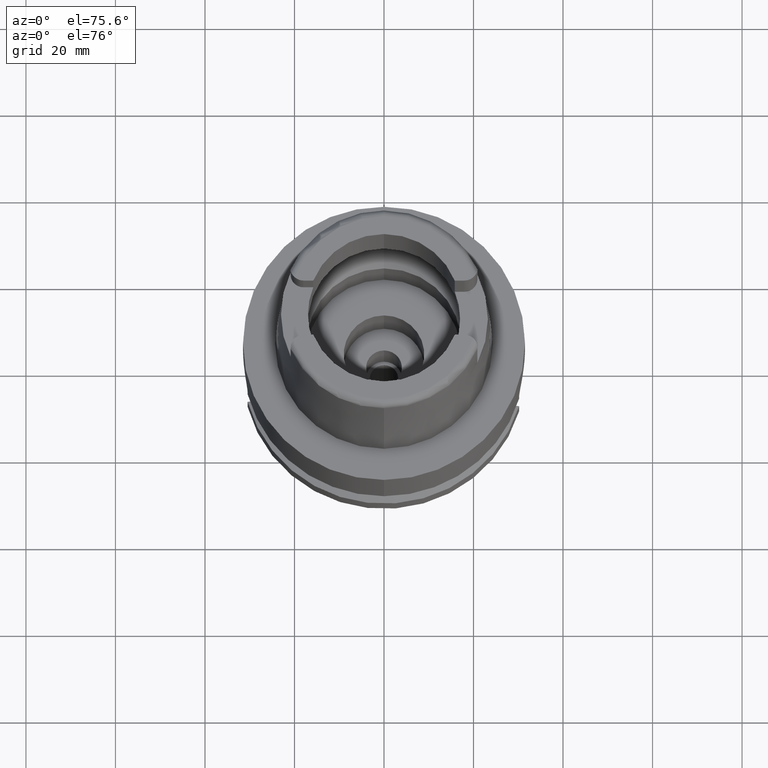
[diagram: clean part render]
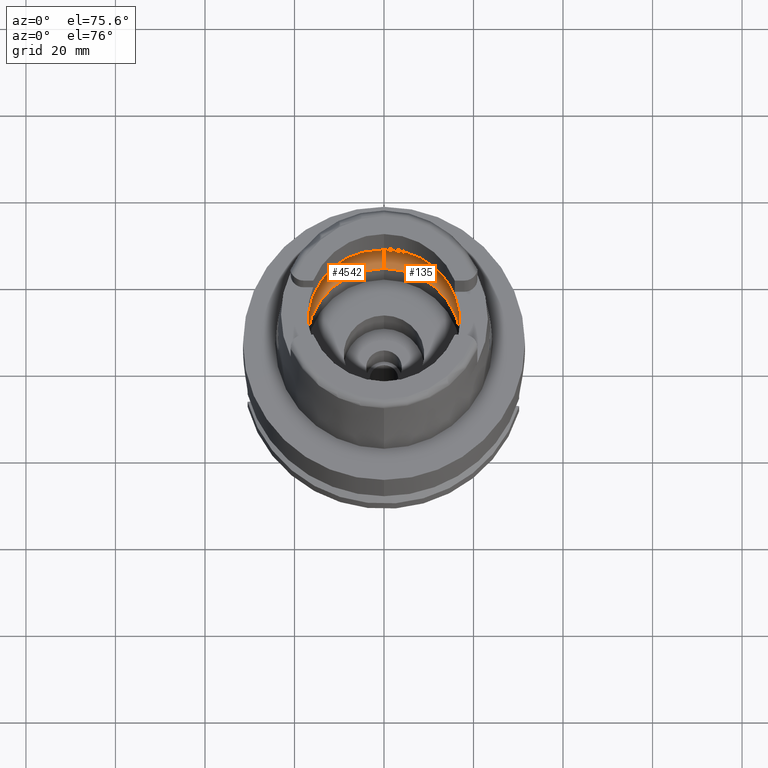
[diagram: same view with one multi-face feature highlighted, each face labeled with its STEP entity id]
A machine part, auxiliary view. The highlighted faces form ONE feature: a constant-radius fillet chain: 2 tangent blend faces with common blend radius 8 mm. The faces share edges in the B-rep.
Their STEP definitions:
[1] entity #4542 (Torus):
#32 = EDGE_CURVE ( 'NONE', #3926, #3215, #4039, .T. ) ;
#123 = CARTESIAN_POINT ( 'NONE',  ( 0.0000000000000000000, -12.00000000000000000, 6.186348233825000875 ) ) ;
#218 = DIRECTION ( 'NONE',  ( 0.0000000000000000000, -1.000000000000000000, 0.0000000000000000000 ) ) ;
#222 = CARTESIAN_POINT ( 'NONE',  ( -19.92547007504345302, -1.335031240339097369, 5.495683724100088874 ) ) ;
#241 = VERTEX_POINT ( 'NONE', #2268 ) ;
#303 = CARTESIAN_POINT ( 'NONE',  ( -19.84575864665999845, -2.479085262491000030, 6.186348233825000875 ) ) ;
#325 = CARTESIAN_POINT ( 'NONE',  ( -19.88058961472209774, -2.158414018199903417, 5.925204145833316893 ) ) ;
#327 = CARTESIAN_POINT ( 'NONE',  ( -19.90996073982917380, 1.795817278995830657, 5.670328124222732136 ) ) ;
#358 = DIRECTION ( 'NONE',  ( 0.0000000000000000000, 0.0000000000000000000, 1.000000000000000000 ) ) ;
#373 = CARTESIAN_POINT ( 'NONE',  ( 0.0000000000000000000, -17.25000000000000000, 0.1500000000000999700 ) ) ;
#375 = EDGE_CURVE ( 'NONE', #4470, #4621, #4132, .T. ) ;
#497 = VERTEX_POINT ( 'NONE', #1100 ) ;
#500 = DIRECTION ( 'NONE',  ( -1.000000000000000000, 0.0000000000000000000, 0.0000000000000000000 ) ) ;
#626 = CARTESIAN_POINT ( 'NONE',  ( -19.92391559123418787, -1.379822842001579009, 5.513022806674898746 ) ) ;
#682 = CARTESIAN_POINT ( 'NONE',  ( -19.92705993187612989, 1.286922590644232978, 5.477696685208107930 ) ) ;
#841 = ORIENTED_EDGE ( 'NONE', *, *, #375, .F. ) ;
#940 = AXIS2_PLACEMENT_3D ( 'NONE', #2735, #358, #2439 ) ;
#962 = ORIENTED_EDGE ( 'NONE', *, *, #3200, .F. ) ;
#1029 = TOROIDAL_SURFACE ( 'NONE', #940, 12.00000000000000000, 8.000000000000000000 ) ;
#1099 = DIRECTION ( 'NONE',  ( 0.0000000000000000000, 0.6562500000000006661, -0.7545435292281016393 ) ) ;
#1100 = CARTESIAN_POINT ( 'NONE',  ( -19.84575864665999845, 2.479085262489999941, 6.186348233825000875 ) ) ;
#1128 = CARTESIAN_POINT ( 'NONE',  ( -19.94501428476000271, 0.2480002814738951344, 5.249999999999999112 ) ) ;
#1206 = CARTESIAN_POINT ( 'NONE',  ( -19.94501428475999560, -0.4960423020627297008, 5.249999999999995559 ) ) ;
#1232 = CARTESIAN_POINT ( 'NONE',  ( 0.0000000000000000000, 0.0000000000000000000, 0.1500000000000999700 ) ) ;
#1353 = CARTESIAN_POINT ( 'NONE',  ( 0.0000000000000000000, 17.25000000000000000, 0.1500000000000999700 ) ) ;
#1361 = CIRCLE ( 'NONE', #2147, 17.25000000000000000 ) ;
#1451 = CARTESIAN_POINT ( 'NONE',  ( -19.90654447560747542, -1.770008974173177263, 5.691881888190377659 ) ) ;
#1471 = VERTEX_POINT ( 'NONE', #373 ) ;
#1513 = CARTESIAN_POINT ( 'NONE',  ( -19.94501428475999916, 0.0000000000000000000, 5.250000000000000000 ) ) ;
#1528 = CARTESIAN_POINT ( 'NONE',  ( 0.0000000000000000000, 0.0000000000000000000, 6.186348233825000875 ) ) ;
#1536 = CARTESIAN_POINT ( 'NONE',  ( -19.92607296192538513, 1.317057065037986030, 5.488888788417265907 ) ) ;
#1558 = CARTESIAN_POINT ( 'NONE',  ( -19.91448525756728927, -1.610510976265786987, 5.612925495665686881 ) ) ;
#1645 = AXIS2_PLACEMENT_3D ( 'NONE', #3016, #4505, #1099 ) ;
#1902 = ORIENTED_EDGE ( 'NONE', *, *, #4771, .F. ) ;
#1947 = CARTESIAN_POINT ( 'NONE',  ( 0.0000000000000000000, -20.00000000000000000, 6.186348233825000875 ) ) ;
#2012 = AXIS2_PLACEMENT_3D ( 'NONE', #1528, #2237, #218 ) ;
#2147 = AXIS2_PLACEMENT_3D ( 'NONE', #1232, #4625, #2907 ) ;
#2237 = DIRECTION ( 'NONE',  ( 0.0000000000000000000, 0.0000000000000000000, -1.000000000000000000 ) ) ;
#2268 = CARTESIAN_POINT ( 'NONE',  ( -19.94501428475999916, 0.0000000000000000000, 5.250000000000000000 ) ) ;
#2305 = CARTESIAN_POINT ( 'NONE',  ( -19.92467615132159864, -1.358120919786871328, 5.504564686247708671 ) ) ;
#2368 = CARTESIAN_POINT ( 'NONE',  ( -19.92646963884338263, 1.305022040076338818, 5.484397814373272340 ) ) ;
#2439 = DIRECTION ( 'NONE',  ( 0.0000000000000000000, 1.000000000000000000, 0.0000000000000000000 ) ) ;
#2616 = DIRECTION ( 'NONE',  ( 0.0000000000000000000, -0.6562500000000006661, -0.7545435292281016393 ) ) ;
#2735 = CARTESIAN_POINT ( 'NONE',  ( 0.0000000000000000000, 0.0000000000000000000, 6.186348233825000875 ) ) ;
#2764 = CIRCLE ( 'NONE', #4629, 20.00000000000001421 ) ;
#2907 = DIRECTION ( 'NONE',  ( 0.0000000000000000000, 1.000000000000000000, 0.0000000000000000000 ) ) ;
#3016 = CARTESIAN_POINT ( 'NONE',  ( 0.0000000000000000000, 12.00000000000000000, 6.186348233825000875 ) ) ;
#3129 = CARTESIAN_POINT ( 'NONE',  ( -19.91819960699401193, -1.528790138807751164, 5.574827418276589341 ) ) ;
#3194 = CARTESIAN_POINT ( 'NONE',  ( -19.94340239125193293, 0.4850157974226460000, 5.274610163457148282 ) ) ;
#3200 = EDGE_CURVE ( 'NONE', #4621, #241, #3640, .T. ) ;
#3215 = VERTEX_POINT ( 'NONE', #3709 ) ;
#3216 = CARTESIAN_POINT ( 'NONE',  ( -19.84575864665999845, 2.479085262489999941, 6.186348233825000875 ) ) ;
#3302 = EDGE_LOOP ( 'NONE', ( #841, #1902, #3917, #4635, #3434, #5389, #962 ) ) ;
#3313 = EDGE_CURVE ( 'NONE', #3926, #1471, #1361, .T. ) ;
#3406 = DIRECTION ( 'NONE',  ( -0.9922879323327794543, 0.1239542631244973381, 0.0000000000000000000 ) ) ;
#3417 = EDGE_CURVE ( 'NONE', #497, #3215, #2764, .T. ) ;
#3434 = ORIENTED_EDGE ( 'NONE', *, *, #3417, .F. ) ;
#3594 = AXIS2_PLACEMENT_3D ( 'NONE', #123, #500, #2616 ) ;
#3640 = B_SPLINE_CURVE_WITH_KNOTS ( 'NONE', 3,
 ( #303, #5335, #325, #5229, #1451, #1558, #3129, #4415, #626, #2305, #3989, #222, #4212, #1206, #5364 ),
 .UNSPECIFIED., .F., .F.,
 ( 4, 2, 2, 1, 1, 1, 2, 2, 4 ),
 ( 0.0000000000000000000, 0.2500000000000051070, 0.3750000000000077716, 0.4375000000000091038, 0.4687500000000098255, 0.4843750000000101030, 0.4921875000000099920, 0.5000000000000098810, 1.000000000000000000 ),
 .UNSPECIFIED. ) ;
#3690 = CARTESIAN_POINT ( 'NONE',  ( -19.88332310116147283, 2.178371483505385786, 5.921391814315846602 ) ) ;
#3709 = CARTESIAN_POINT ( 'NONE',  ( 0.0000000000000000000, 20.00000000000000000, 6.186348233825000875 ) ) ;
#3917 = ORIENTED_EDGE ( 'NONE', *, *, #3313, .F. ) ;
#3926 = VERTEX_POINT ( 'NONE', #1353 ) ;
#3989 = CARTESIAN_POINT ( 'NONE',  ( -19.92517785718085577, -1.343613127942956842, 5.498962406970089312 ) ) ;
#4039 = CIRCLE ( 'NONE', #1645, 7.999999999999992895 ) ;
#4060 = CARTESIAN_POINT ( 'NONE',  ( -19.92591704426989452, 1.321751840890049490, 5.490650643677390974 ) ) ;
#4106 = CARTESIAN_POINT ( 'NONE',  ( -19.93292508344945801, 1.081630659659294169, 5.408972087979956989 ) ) ;
#4132 = CIRCLE ( 'NONE', #2012, 20.00000000000000000 ) ;
#4203 = CARTESIAN_POINT ( 'NONE',  ( -19.84575864665999845, -2.479085262491000030, 6.186348233825000875 ) ) ;
#4212 = CARTESIAN_POINT ( 'NONE',  ( -19.93856671042052398, -0.9459665778997381480, 5.348222674928019060 ) ) ;
#4262 = CARTESIAN_POINT ( 'NONE',  ( 0.0000000000000000000, 0.0000000000000000000, 6.186348233825000875 ) ) ;
#4327 = DIRECTION ( 'NONE',  ( 0.0000000000000000000, 0.0000000000000000000, -1.000000000000000000 ) ) ;
#4415 = CARTESIAN_POINT ( 'NONE',  ( -19.92208494194046509, -1.430041077684033990, 5.533135808937241329 ) ) ;
#4470 = VERTEX_POINT ( 'NONE', #1947 ) ;
#4471 = CARTESIAN_POINT ( 'NONE',  ( -19.92840422587602944, 1.244362650384072122, 5.462311864171463860 ) ) ;
#4504 = CARTESIAN_POINT ( 'NONE',  ( -19.93655184384261858, 0.9261166967963114782, 5.364558725656097593 ) ) ;
#4505 = DIRECTION ( 'NONE',  ( 1.000000000000000000, 0.0000000000000000000, 0.0000000000000000000 ) ) ;
#4523 = EDGE_CURVE ( 'NONE', #241, #497, #4580, .T. ) ;
#4542 = ADVANCED_FACE ( 'NONE', ( #5259 ), #1029, .F. ) ;
#4580 = B_SPLINE_CURVE_WITH_KNOTS ( 'NONE', 3,
 ( #1513, #1128, #3194, #5312, #4504, #4106, #4877, #4471, #682, #2368, #1536, #4060, #327, #3690, #3216 ),
 .UNSPECIFIED., .F., .F.,
 ( 4, 2, 2, 1, 1, 1, 2, 2, 4 ),
 ( 0.0000000000000000000, 0.2499999999999956146, 0.3749999999999934497, 0.4374999999999923395, 0.4687499999999917288, 0.4843749999999914513, 0.4921874999999914513, 0.4999999999999915623, 1.000000000000000000 ),
 .UNSPECIFIED. ) ;
#4621 = VERTEX_POINT ( 'NONE', #4203 ) ;
#4625 = DIRECTION ( 'NONE',  ( 0.0000000000000000000, 0.0000000000000000000, 1.000000000000000000 ) ) ;
#4629 = AXIS2_PLACEMENT_3D ( 'NONE', #4262, #4327, #3406 ) ;
#4635 = ORIENTED_EDGE ( 'NONE', *, *, #32, .T. ) ;
#4771 = EDGE_CURVE ( 'NONE', #1471, #4470, #5262, .T. ) ;
#4877 = CARTESIAN_POINT ( 'NONE',  ( -19.93096058823649130, 1.157935579649966629, 5.432577573767241041 ) ) ;
#5229 = CARTESIAN_POINT ( 'NONE',  ( -19.90056784349247820, -1.871074272730828048, 5.748194928871746434 ) ) ;
#5259 = FACE_OUTER_BOUND ( 'NONE', #3302, .T. ) ;
#5262 = CIRCLE ( 'NONE', #3594, 7.999999999999992895 ) ;
#5312 = CARTESIAN_POINT ( 'NONE',  ( -19.93856671072771292, 0.8185607198028845843, 5.338678409714962214 ) ) ;
#5335 = CARTESIAN_POINT ( 'NONE',  ( -19.86453968564131500, -2.328737885376345407, 6.053878405347992597 ) ) ;
#5364 = CARTESIAN_POINT ( 'NONE',  ( -19.94501428475999916, 0.0000000000000000000, 5.250000000000000000 ) ) ;
#5389 = ORIENTED_EDGE ( 'NONE', *, *, #4523, .F. ) ;
[2] entity #135 (Torus):
#5 = CIRCLE ( 'NONE', #870, 20.00000000000000000 ) ;
#32 = EDGE_CURVE ( 'NONE', #3926, #3215, #4039, .T. ) ;
#104 = ORIENTED_EDGE ( 'NONE', *, *, #3899, .F. ) ;
#123 = CARTESIAN_POINT ( 'NONE',  ( 0.0000000000000000000, -12.00000000000000000, 6.186348233825000875 ) ) ;
#135 = ADVANCED_FACE ( 'NONE', ( #1281 ), #1300, .F. ) ;
#367 = CARTESIAN_POINT ( 'NONE',  ( 19.90996060949652602, -1.795819319521762880, 5.670329520825312386 ) ) ;
#373 = CARTESIAN_POINT ( 'NONE',  ( 0.0000000000000000000, -17.25000000000000000, 0.1500000000000999700 ) ) ;
#405 = DIRECTION ( 'NONE',  ( 0.0000000000000000000, 1.000000000000000000, 0.0000000000000000000 ) ) ;
#500 = DIRECTION ( 'NONE',  ( -1.000000000000000000, 0.0000000000000000000, 0.0000000000000000000 ) ) ;
#518 = VERTEX_POINT ( 'NONE', #2236 ) ;
#519 = CARTESIAN_POINT ( 'NONE',  ( 19.92467627844355960, 1.358116918539620022, 5.504563131531990727 ) ) ;
#560 = ORIENTED_EDGE ( 'NONE', *, *, #4965, .F. ) ;
#654 = CARTESIAN_POINT ( 'NONE',  ( 19.92547020324161622, 1.335027099705185627, 5.495682146681671654 ) ) ;
#773 = CARTESIAN_POINT ( 'NONE',  ( 19.93655178888372603, -0.9261198900591779415, 5.364559530321097114 ) ) ;
#783 = EDGE_CURVE ( 'NONE', #518, #4470, #1386, .T. ) ;
#869 = DIRECTION ( 'NONE',  ( 0.0000000000000000000, 0.0000000000000000000, 1.000000000000000000 ) ) ;
#870 = AXIS2_PLACEMENT_3D ( 'NONE', #2821, #2487, #2847 ) ;
#925 = CARTESIAN_POINT ( 'NONE',  ( 19.92208506923287459, 1.430037391292729776, 5.533134286467971563 ) ) ;
#1014 = CARTESIAN_POINT ( 'NONE',  ( 19.90654459260023046, 1.770006697072543655, 5.691880654306274323 ) ) ;
#1081 = ORIENTED_EDGE ( 'NONE', *, *, #4771, .T. ) ;
#1099 = DIRECTION ( 'NONE',  ( 0.0000000000000000000, 0.6562500000000006661, -0.7545435292281016393 ) ) ;
#1264 = CARTESIAN_POINT ( 'NONE',  ( 19.92646951840612601, -1.305026090026983221, 5.484399317726092349 ) ) ;
#1281 = FACE_OUTER_BOUND ( 'NONE', #5428, .T. ) ;
#1300 = TOROIDAL_SURFACE ( 'NONE', #2532, 12.00000000000000000, 8.000000000000000000 ) ;
#1321 = CARTESIAN_POINT ( 'NONE',  ( 19.84575864665999845, 2.479085262491000030, 6.186348233825000875 ) ) ;
#1343 = CARTESIAN_POINT ( 'NONE',  ( 19.86453973035714426, 2.328737527431136822, 6.053878089965434306 ) ) ;
#1353 = CARTESIAN_POINT ( 'NONE',  ( 0.0000000000000000000, 17.25000000000000000, 0.1500000000000999700 ) ) ;
#1376 = DIRECTION ( 'NONE',  ( 0.0000000000000000000, 0.0000000000000000000, 1.000000000000000000 ) ) ;
#1386 = CIRCLE ( 'NONE', #3154, 20.00000000000001421 ) ;
#1471 = VERTEX_POINT ( 'NONE', #373 ) ;
#1566 = EDGE_CURVE ( 'NONE', #3215, #4994, #5, .T. ) ;
#1597 = CARTESIAN_POINT ( 'NONE',  ( 19.94501428475999916, -0.2480012822881115242, 5.249999999999998224 ) ) ;
#1645 = AXIS2_PLACEMENT_3D ( 'NONE', #3016, #4505, #1099 ) ;
#1717 = AXIS2_PLACEMENT_3D ( 'NONE', #4426, #1376, #3112 ) ;
#1816 = ORIENTED_EDGE ( 'NONE', *, *, #1566, .F. ) ;
#1861 = ORIENTED_EDGE ( 'NONE', *, *, #4404, .F. ) ;
#1893 = CARTESIAN_POINT ( 'NONE',  ( 19.94501428475999560, 0.4960402853743198781, 5.249999999999998224 ) ) ;
#1947 = CARTESIAN_POINT ( 'NONE',  ( 0.0000000000000000000, -20.00000000000000000, 6.186348233825000875 ) ) ;
#2085 = CARTESIAN_POINT ( 'NONE',  ( 19.94501428475999916, 0.0000000000000000000, 5.250000000000000000 ) ) ;
#2162 = CARTESIAN_POINT ( 'NONE',  ( 19.91819973341328520, 1.528786876979105092, 5.574825955112730824 ) ) ;
#2195 = CARTESIAN_POINT ( 'NONE',  ( 19.92517798419736508, 1.343609062691619505, 5.498960846759645804 ) ) ;
#2217 = ORIENTED_EDGE ( 'NONE', *, *, #783, .F. ) ;
#2236 = CARTESIAN_POINT ( 'NONE',  ( 19.84575864665999845, -2.479085262491000030, 6.186348233825000875 ) ) ;
#2313 = DIRECTION ( 'NONE',  ( 0.0000000000000000000, 0.0000000000000000000, -1.000000000000000000 ) ) ;
#2333 = CARTESIAN_POINT ( 'NONE',  ( 19.93856675271269907, 0.9459631445366759595, 5.348221889603004264 ) ) ;
#2453 = CARTESIAN_POINT ( 'NONE',  ( 19.92607283891191727, -1.317061137141631644, 5.488890315884864535 ) ) ;
#2470 = CARTESIAN_POINT ( 'NONE',  ( 0.0000000000000000000, 0.0000000000000000000, 6.186348233825000875 ) ) ;
#2487 = DIRECTION ( 'NONE',  ( 0.0000000000000000000, 0.0000000000000000000, -1.000000000000000000 ) ) ;
#2532 = AXIS2_PLACEMENT_3D ( 'NONE', #2470, #869, #405 ) ;
#2607 = CARTESIAN_POINT ( 'NONE',  ( 19.92391571847977616, 1.379818936262250162, 5.513021260670475598 ) ) ;
#2616 = DIRECTION ( 'NONE',  ( 0.0000000000000000000, -0.6562500000000006661, -0.7545435292281016393 ) ) ;
#2821 = CARTESIAN_POINT ( 'NONE',  ( 0.0000000000000000000, 0.0000000000000000000, 6.186348233825000875 ) ) ;
#2847 = DIRECTION ( 'NONE',  ( 0.0000000000000000000, 1.000000000000000000, 0.0000000000000000000 ) ) ;
#2942 = CARTESIAN_POINT ( 'NONE',  ( 19.84575864665999845, -2.479085262491000030, 6.186348233825000875 ) ) ;
#3015 = CARTESIAN_POINT ( 'NONE',  ( 19.90056795285839186, 1.871072381427642872, 5.748193827892897012 ) ) ;
#3016 = CARTESIAN_POINT ( 'NONE',  ( 0.0000000000000000000, 12.00000000000000000, 6.186348233825000875 ) ) ;
#3112 = DIRECTION ( 'NONE',  ( 0.0000000000000000000, -1.000000000000000000, 0.0000000000000000000 ) ) ;
#3154 = AXIS2_PLACEMENT_3D ( 'NONE', #3246, #2313, #3585 ) ;
#3215 = VERTEX_POINT ( 'NONE', #3709 ) ;
#3246 = CARTESIAN_POINT ( 'NONE',  ( 0.0000000000000000000, 0.0000000000000000000, 6.186348233825000875 ) ) ;
#3267 = CARTESIAN_POINT ( 'NONE',  ( 19.94501428475999916, 0.0000000000000000000, 5.250000000000000000 ) ) ;
#3362 = CARTESIAN_POINT ( 'NONE',  ( 19.92705981527248582, -1.286926606873759260, 5.477698152406421883 ) ) ;
#3585 = DIRECTION ( 'NONE',  ( 0.9922879323327794543, -0.1239542631244973381, 0.0000000000000000000 ) ) ;
#3594 = AXIS2_PLACEMENT_3D ( 'NONE', #123, #500, #2616 ) ;
#3709 = CARTESIAN_POINT ( 'NONE',  ( 0.0000000000000000000, 20.00000000000000000, 6.186348233825000875 ) ) ;
#3734 = B_SPLINE_CURVE_WITH_KNOTS ( 'NONE', 3,
 ( #4793, #1343, #4418, #3015, #1014, #4716, #2162, #925, #2607, #519, #2195, #654, #2333, #1893, #3267 ),
 .UNSPECIFIED., .F., .F.,
 ( 4, 2, 2, 1, 1, 1, 2, 2, 4 ),
 ( 0.0000000000000000000, 0.2499999999999997780, 0.3749999999999998890, 0.4374999999999997780, 0.4687499999999997224, 0.4843749999999998335, 0.4921874999999997224, 0.4999999999999996669, 1.000000000000000000 ),
 .UNSPECIFIED. ) ;
#3874 = ORIENTED_EDGE ( 'NONE', *, *, #32, .F. ) ;
#3899 = EDGE_CURVE ( 'NONE', #1471, #3926, #5427, .T. ) ;
#3926 = VERTEX_POINT ( 'NONE', #1353 ) ;
#4039 = CIRCLE ( 'NONE', #1645, 7.999999999999992895 ) ;
#4127 = VERTEX_POINT ( 'NONE', #2085 ) ;
#4152 = CARTESIAN_POINT ( 'NONE',  ( 19.92591691872321036, -1.321755966737460097, 5.490652197696743286 ) ) ;
#4404 = EDGE_CURVE ( 'NONE', #4994, #4127, #3734, .T. ) ;
#4418 = CARTESIAN_POINT ( 'NONE',  ( 19.88058969236887918, 2.158413152842841853, 5.925203484518755559 ) ) ;
#4426 = CARTESIAN_POINT ( 'NONE',  ( 0.0000000000000000000, 0.0000000000000000000, 0.1500000000000999700 ) ) ;
#4470 = VERTEX_POINT ( 'NONE', #1947 ) ;
#4505 = DIRECTION ( 'NONE',  ( 1.000000000000000000, 0.0000000000000000000, 0.0000000000000000000 ) ) ;
#4521 = B_SPLINE_CURVE_WITH_KNOTS ( 'NONE', 3,
 ( #5378, #1597, #4970, #4561, #773, #4639, #4586, #5401, #3362, #1264, #2453, #4152, #367, #5043, #2942 ),
 .UNSPECIFIED., .F., .F.,
 ( 4, 2, 2, 1, 1, 1, 2, 2, 4 ),
 ( 0.0000000000000000000, 0.2499999999999993339, 0.3749999999999989453, 0.4374999999999988343, 0.4687499999999988343, 0.4843749999999986122, 0.4921874999999987788, 0.4999999999999990008, 1.000000000000000000 ),
 .UNSPECIFIED. ) ;
#4561 = CARTESIAN_POINT ( 'NONE',  ( 19.93856666885426776, -0.8185636124059944008, 5.338679045133568835 ) ) ;
#4586 = CARTESIAN_POINT ( 'NONE',  ( 19.93096049696546856, -1.157939335591951835, 5.432578789541310016 ) ) ;
#4639 = CARTESIAN_POINT ( 'NONE',  ( 19.93292500493674524, -1.081634238850563756, 5.408973163817657692 ) ) ;
#4716 = CARTESIAN_POINT ( 'NONE',  ( 19.91448538158094550, 1.610508053762594205, 5.612924102263945336 ) ) ;
#4771 = EDGE_CURVE ( 'NONE', #1471, #4470, #5262, .T. ) ;
#4793 = CARTESIAN_POINT ( 'NONE',  ( 19.84575864665999845, 2.479085262491000030, 6.186348233825000875 ) ) ;
#4965 = EDGE_CURVE ( 'NONE', #4127, #518, #4521, .T. ) ;
#4970 = CARTESIAN_POINT ( 'NONE',  ( 19.94340238078356720, -0.4850176595367955978, 5.274610361541469672 ) ) ;
#4994 = VERTEX_POINT ( 'NONE', #1321 ) ;
#5043 = CARTESIAN_POINT ( 'NONE',  ( 19.88332301270226665, -2.178372191595277396, 5.921392438207983666 ) ) ;
#5262 = CIRCLE ( 'NONE', #3594, 7.999999999999992895 ) ;
#5378 = CARTESIAN_POINT ( 'NONE',  ( 19.94501428475999916, 0.0000000000000000000, 5.250000000000000000 ) ) ;
#5401 = CARTESIAN_POINT ( 'NONE',  ( 19.92840411800285239, -1.244366584479200233, 5.462313247185337062 ) ) ;
#5427 = CIRCLE ( 'NONE', #1717, 17.25000000000000000 ) ;
#5428 = EDGE_LOOP ( 'NONE', ( #1861, #1816, #3874, #104, #1081, #2217, #560 ) ) ;